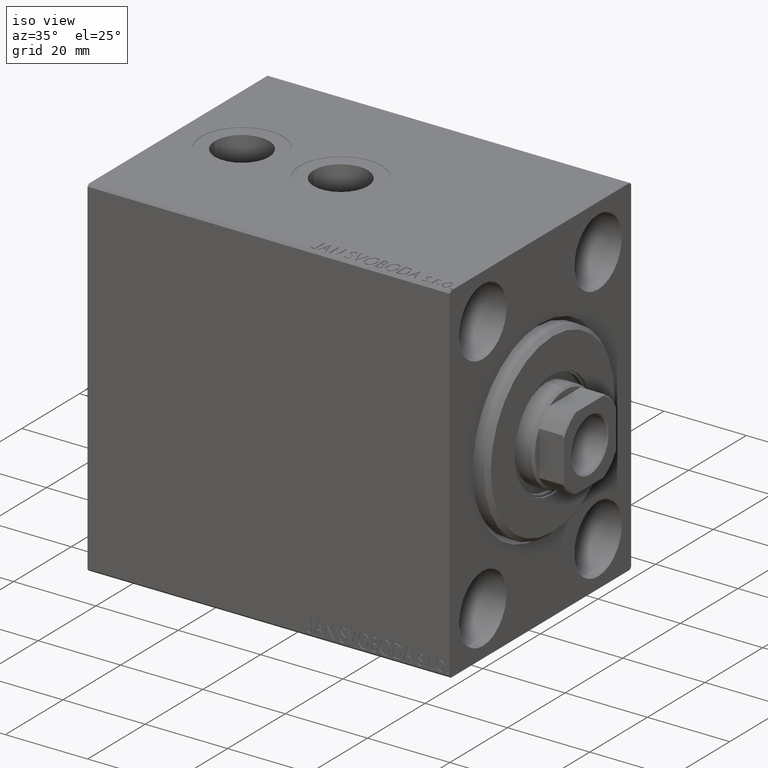
[diagram: clean part render]
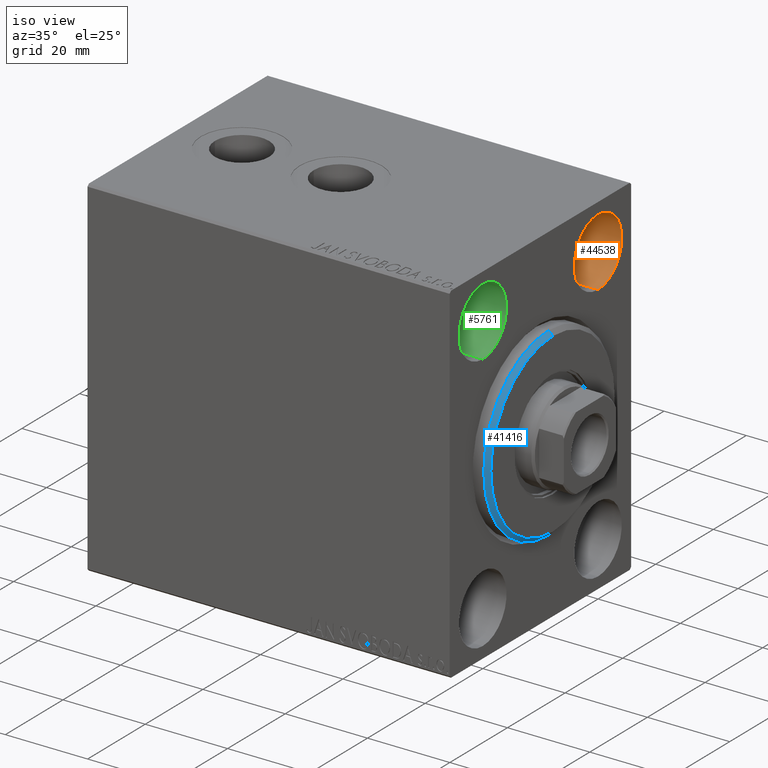
[diagram: same view with three faces highlighted in distinct colors, each labeled with its STEP entity id]
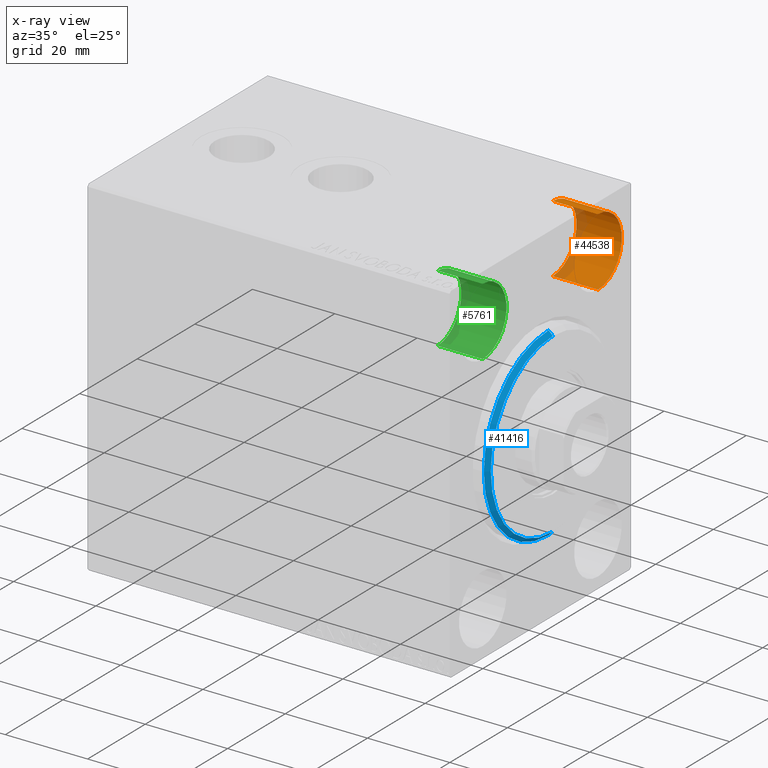
[diagram: x-ray of the same camera — body ghosted, the three highlighted faces saturated]
A machine part, iso view with three faces highlighted in distinct colors.
The next image is the same camera in x-ray (body ghosted, the three faces saturated) — at least one of them is partly hidden behind the body in this view.
Their STEP definitions:

[orange] entity #44538 — the highlighted cylindrical surface (partial cylindrical patch) has radius 8.25 mm, axis along (1, -0, 0).
#1633 = DIRECTION ( 'NONE',  ( -1.000000000000000000, -0.000000000000000000, -0.000000000000000000 ) ) ;
#2303 = CARTESIAN_POINT ( 'NONE',  ( 11.00000000000000000, 19.99999999999999645, -31.50000000000000711 ) ) ;
#2582 = VECTOR ( 'NONE', #23461, 1000.000000000000000 ) ;
#3765 = ORIENTED_EDGE ( 'NONE', *, *, #29188, .F. ) ;
#4422 = DIRECTION ( 'NONE',  ( -1.000000000000000000, -0.000000000000000000, -0.000000000000000000 ) ) ;
#4748 = DIRECTION ( 'NONE',  ( 0.000000000000000000, 0.000000000000000000, 1.000000000000000000 ) ) ;
#5569 = VECTOR ( 'NONE', #4422, 1000.000000000000000 ) ;
#5993 = CARTESIAN_POINT ( 'NONE',  ( 0.000000000000000000, 19.99999999999999645, -23.25000000000000711 ) ) ;
#7894 = AXIS2_PLACEMENT_3D ( 'NONE', #11786, #1633, #25760 ) ;
#8184 = AXIS2_PLACEMENT_3D ( 'NONE', #31583, #21871, #4748 ) ;
#8210 = CIRCLE ( 'NONE', #8184, 8.250000000000000000 ) ;
#8447 = CARTESIAN_POINT ( 'NONE',  ( 11.00000000000000000, 19.99999999999999645, -23.25000000000000711 ) ) ;
#8626 = DIRECTION ( 'NONE',  ( 0.000000000000000000, 0.000000000000000000, 1.000000000000000000 ) ) ;
#10610 = VERTEX_POINT ( 'NONE', #44197 ) ;
#11241 = ORIENTED_EDGE ( 'NONE', *, *, #24462, .T. ) ;
#11786 = CARTESIAN_POINT ( 'NONE',  ( 11.00000000000000000, 19.99999999999999645, -31.50000000000000711 ) ) ;
#14020 = AXIS2_PLACEMENT_3D ( 'NONE', #2303, #15614, #8626 ) ;
#14100 = VERTEX_POINT ( 'NONE', #19563 ) ;
#15614 = DIRECTION ( 'NONE',  ( -1.000000000000000000, 0.000000000000000000, 0.000000000000000000 ) ) ;
#19563 = CARTESIAN_POINT ( 'NONE',  ( 11.00000000000000000, 19.99999999999999645, -39.75000000000000711 ) ) ;
#20050 = VERTEX_POINT ( 'NONE', #5993 ) ;
#21871 = DIRECTION ( 'NONE',  ( -1.000000000000000000, 0.000000000000000000, 0.000000000000000000 ) ) ;
#23461 = DIRECTION ( 'NONE',  ( -1.000000000000000000, -0.000000000000000000, -0.000000000000000000 ) ) ;
#24462 = EDGE_CURVE ( 'NONE', #20050, #42202, #8210, .T. ) ;
#24819 = CIRCLE ( 'NONE', #14020, 8.250000000000000000 ) ;
#25760 = DIRECTION ( 'NONE',  ( 0.000000000000000000, 0.000000000000000000, 1.000000000000000000 ) ) ;
#28927 = FACE_OUTER_BOUND ( 'NONE', #39758, .T. ) ;
#29188 = EDGE_CURVE ( 'NONE', #14100, #42202, #33615, .T. ) ;
#29250 = ORIENTED_EDGE ( 'NONE', *, *, #37529, .T. ) ;
#30613 = EDGE_CURVE ( 'NONE', #10610, #14100, #24819, .T. ) ;
#31583 = CARTESIAN_POINT ( 'NONE',  ( 0.000000000000000000, 19.99999999999999645, -31.50000000000000711 ) ) ;
#32952 = CARTESIAN_POINT ( 'NONE',  ( 0.000000000000000000, 19.99999999999999645, -39.75000000000000711 ) ) ;
#33615 = LINE ( 'NONE', #44431, #2582 ) ;
#37529 = EDGE_CURVE ( 'NONE', #10610, #20050, #42714, .T. ) ;
#39758 = EDGE_LOOP ( 'NONE', ( #3765, #39977, #29250, #11241 ) ) ;
#39977 = ORIENTED_EDGE ( 'NONE', *, *, #30613, .F. ) ;
#42202 = VERTEX_POINT ( 'NONE', #32952 ) ;
#42679 = CYLINDRICAL_SURFACE ( 'NONE', #7894, 8.250000000000000000 ) ;
#42714 = LINE ( 'NONE', #8447, #5569 ) ;
#44197 = CARTESIAN_POINT ( 'NONE',  ( 11.00000000000000000, 19.99999999999999645, -23.25000000000000711 ) ) ;
#44431 = CARTESIAN_POINT ( 'NONE',  ( 11.00000000000000000, 19.99999999999999645, -39.75000000000000711 ) ) ;
#44538 = ADVANCED_FACE ( 'NONE', ( #28927 ), #42679, .F. ) ;

[blue] entity #41416 — the highlighted conical surface has half-angle 45 deg.
#403 = CARTESIAN_POINT ( 'NONE',  ( 3.000000000000000000, 0.000000000000000000, 21.50000000000000000 ) ) ;
#704 = CARTESIAN_POINT ( 'NONE',  ( 1.999999999999992228, 0.000000000000000000, 0.000000000000000000 ) ) ;
#2524 = ORIENTED_EDGE ( 'NONE', *, *, #6936, .F. ) ;
#2916 = VECTOR ( 'NONE', #39902, 1000.000000000000000 ) ;
#3637 = DIRECTION ( 'NONE',  ( 0.000000000000000000, 0.000000000000000000, 1.000000000000000000 ) ) ;
#5374 = ORIENTED_EDGE ( 'NONE', *, *, #36115, .F. ) ;
#5672 = CONICAL_SURFACE ( 'NONE', #11434, 21.50000000000000000, 0.7853981633974466137 ) ;
#6936 = EDGE_CURVE ( 'NONE', #10942, #33483, #36523, .T. ) ;
#7009 = FACE_OUTER_BOUND ( 'NONE', #40020, .T. ) ;
#7670 = AXIS2_PLACEMENT_3D ( 'NONE', #704, #42174, #41520 ) ;
#9322 = ORIENTED_EDGE ( 'NONE', *, *, #17868, .F. ) ;
#10504 = LINE ( 'NONE', #33946, #12495 ) ;
#10942 = VERTEX_POINT ( 'NONE', #403 ) ;
#11018 = VERTEX_POINT ( 'NONE', #37853 ) ;
#11434 = AXIS2_PLACEMENT_3D ( 'NONE', #33829, #27055, #3637 ) ;
#12495 = VECTOR ( 'NONE', #20422, 1000.000000000000000 ) ;
#13118 = DIRECTION ( 'NONE',  ( 0.000000000000000000, 0.000000000000000000, -1.000000000000000000 ) ) ;
#16214 = LINE ( 'NONE', #26135, #2916 ) ;
#17868 = EDGE_CURVE ( 'NONE', #33483, #28444, #16214, .T. ) ;
#19888 = CIRCLE ( 'NONE', #7670, 22.50000000000000355 ) ;
#20324 = DIRECTION ( 'NONE',  ( 1.000000000000000000, -0.000000000000000000, 0.000000000000000000 ) ) ;
#20422 = DIRECTION ( 'NONE',  ( -0.7071067811865487940, 0.000000000000000000, 0.7071067811865463515 ) ) ;
#22408 = EDGE_CURVE ( 'NONE', #10942, #11018, #10504, .T. ) ;
#23253 = CARTESIAN_POINT ( 'NONE',  ( 3.000000000000000000, 0.000000000000000000, 0.000000000000000000 ) ) ;
#25002 = AXIS2_PLACEMENT_3D ( 'NONE', #23253, #20324, #13118 ) ;
#26135 = CARTESIAN_POINT ( 'NONE',  ( 3.000000000000000000, 2.632990618166809235E-15, -21.50000000000000000 ) ) ;
#27055 = DIRECTION ( 'NONE',  ( -1.000000000000000000, 0.000000000000000000, 0.000000000000000000 ) ) ;
#28444 = VERTEX_POINT ( 'NONE', #31510 ) ;
#31510 = CARTESIAN_POINT ( 'NONE',  ( 1.999999999999992228, 2.755455298081545172E-15, -22.50000000000000355 ) ) ;
#33483 = VERTEX_POINT ( 'NONE', #39955 ) ;
#33829 = CARTESIAN_POINT ( 'NONE',  ( 3.000000000000000000, 0.000000000000000000, 0.000000000000000000 ) ) ;
#33946 = CARTESIAN_POINT ( 'NONE',  ( 3.000000000000000000, 0.000000000000000000, 21.50000000000000000 ) ) ;
#36115 = EDGE_CURVE ( 'NONE', #28444, #11018, #19888, .T. ) ;
#36523 = CIRCLE ( 'NONE', #25002, 21.50000000000000000 ) ;
#37853 = CARTESIAN_POINT ( 'NONE',  ( 1.999999999999992228, 0.000000000000000000, 22.50000000000000355 ) ) ;
#39469 = ORIENTED_EDGE ( 'NONE', *, *, #22408, .T. ) ;
#39902 = DIRECTION ( 'NONE',  ( -0.7071067811865487940, 8.659560562354918067E-17, -0.7071067811865463515 ) ) ;
#39955 = CARTESIAN_POINT ( 'NONE',  ( 3.000000000000000000, 2.694222958124177204E-15, -21.50000000000000000 ) ) ;
#40020 = EDGE_LOOP ( 'NONE', ( #9322, #2524, #39469, #5374 ) ) ;
#41416 = ADVANCED_FACE ( 'NONE', ( #7009 ), #5672, .T. ) ;
#41520 = DIRECTION ( 'NONE',  ( 0.000000000000000000, 0.000000000000000000, -1.000000000000000000 ) ) ;
#42174 = DIRECTION ( 'NONE',  ( -1.000000000000000000, 0.000000000000000000, 0.000000000000000000 ) ) ;

[green] entity #5761 — the highlighted cylindrical surface (partial cylindrical patch) has radius 8.25 mm, axis along (1, -0, 0).
#160 = ORIENTED_EDGE ( 'NONE', *, *, #12703, .F. ) ;
#1815 = EDGE_CURVE ( 'NONE', #8520, #11725, #3387, .T. ) ;
#3387 = CIRCLE ( 'NONE', #32175, 8.250000000000000000 ) ;
#5761 = ADVANCED_FACE ( 'NONE', ( #17805 ), #35163, .F. ) ;
#7031 = DIRECTION ( 'NONE',  ( -1.000000000000000000, 0.000000000000000000, 0.000000000000000000 ) ) ;
#7591 = CARTESIAN_POINT ( 'NONE',  ( 0.000000000000000000, -20.00000000000000355, -23.25000000000000711 ) ) ;
#7880 = DIRECTION ( 'NONE',  ( -1.000000000000000000, -0.000000000000000000, -0.000000000000000000 ) ) ;
#8310 = VERTEX_POINT ( 'NONE', #21834 ) ;
#8520 = VERTEX_POINT ( 'NONE', #7591 ) ;
#10016 = AXIS2_PLACEMENT_3D ( 'NONE', #20373, #30509, #44263 ) ;
#11725 = VERTEX_POINT ( 'NONE', #17770 ) ;
#12458 = DIRECTION ( 'NONE',  ( -1.000000000000000000, -0.000000000000000000, -0.000000000000000000 ) ) ;
#12703 = EDGE_CURVE ( 'NONE', #8310, #11725, #21936, .T. ) ;
#14087 = VECTOR ( 'NONE', #29541, 1000.000000000000000 ) ;
#15757 = VECTOR ( 'NONE', #12458, 1000.000000000000000 ) ;
#15797 = CARTESIAN_POINT ( 'NONE',  ( 11.00000000000000000, -20.00000000000000355, -23.25000000000000711 ) ) ;
#17770 = CARTESIAN_POINT ( 'NONE',  ( 0.000000000000000000, -20.00000000000000355, -39.75000000000000711 ) ) ;
#17805 = FACE_OUTER_BOUND ( 'NONE', #43688, .T. ) ;
#18065 = CARTESIAN_POINT ( 'NONE',  ( 0.000000000000000000, -20.00000000000000355, -31.50000000000000711 ) ) ;
#18845 = ORIENTED_EDGE ( 'NONE', *, *, #32737, .T. ) ;
#20373 = CARTESIAN_POINT ( 'NONE',  ( 11.00000000000000000, -20.00000000000000355, -31.50000000000000711 ) ) ;
#20965 = DIRECTION ( 'NONE',  ( 0.000000000000000000, 0.000000000000000000, 1.000000000000000000 ) ) ;
#21834 = CARTESIAN_POINT ( 'NONE',  ( 11.00000000000000000, -20.00000000000000355, -39.75000000000000711 ) ) ;
#21936 = LINE ( 'NONE', #25528, #15757 ) ;
#25242 = ORIENTED_EDGE ( 'NONE', *, *, #43087, .F. ) ;
#25528 = CARTESIAN_POINT ( 'NONE',  ( 11.00000000000000000, -20.00000000000000355, -39.75000000000000711 ) ) ;
#29541 = DIRECTION ( 'NONE',  ( -1.000000000000000000, -0.000000000000000000, -0.000000000000000000 ) ) ;
#30509 = DIRECTION ( 'NONE',  ( -1.000000000000000000, 0.000000000000000000, 0.000000000000000000 ) ) ;
#31440 = AXIS2_PLACEMENT_3D ( 'NONE', #41705, #7880, #20965 ) ;
#31617 = CIRCLE ( 'NONE', #10016, 8.250000000000000000 ) ;
#32175 = AXIS2_PLACEMENT_3D ( 'NONE', #18065, #7031, #41294 ) ;
#32737 = EDGE_CURVE ( 'NONE', #34047, #8520, #32923, .T. ) ;
#32923 = LINE ( 'NONE', #15797, #14087 ) ;
#34047 = VERTEX_POINT ( 'NONE', #42295 ) ;
#35163 = CYLINDRICAL_SURFACE ( 'NONE', #31440, 8.250000000000000000 ) ;
#41294 = DIRECTION ( 'NONE',  ( 0.000000000000000000, 0.000000000000000000, 1.000000000000000000 ) ) ;
#41705 = CARTESIAN_POINT ( 'NONE',  ( 11.00000000000000000, -20.00000000000000355, -31.50000000000000711 ) ) ;
#42295 = CARTESIAN_POINT ( 'NONE',  ( 11.00000000000000000, -20.00000000000000355, -23.25000000000000711 ) ) ;
#43087 = EDGE_CURVE ( 'NONE', #34047, #8310, #31617, .T. ) ;
#43682 = ORIENTED_EDGE ( 'NONE', *, *, #1815, .T. ) ;
#43688 = EDGE_LOOP ( 'NONE', ( #160, #25242, #18845, #43682 ) ) ;
#44263 = DIRECTION ( 'NONE',  ( 0.000000000000000000, 0.000000000000000000, 1.000000000000000000 ) ) ;